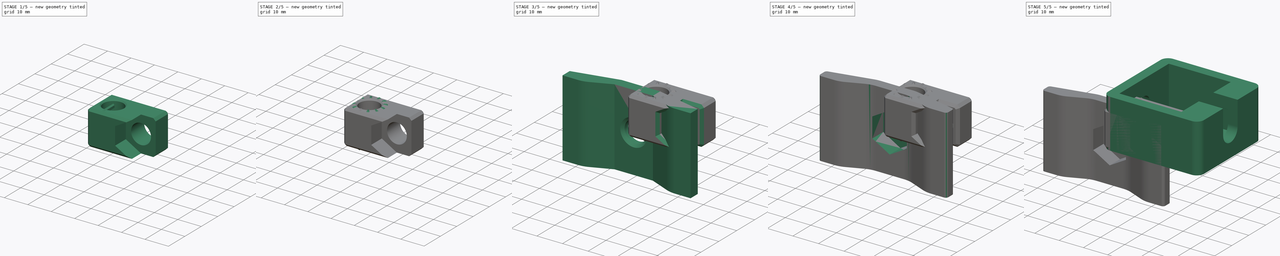
[diagram: build sequence overview — one tinted view per stage of 5, left to right]
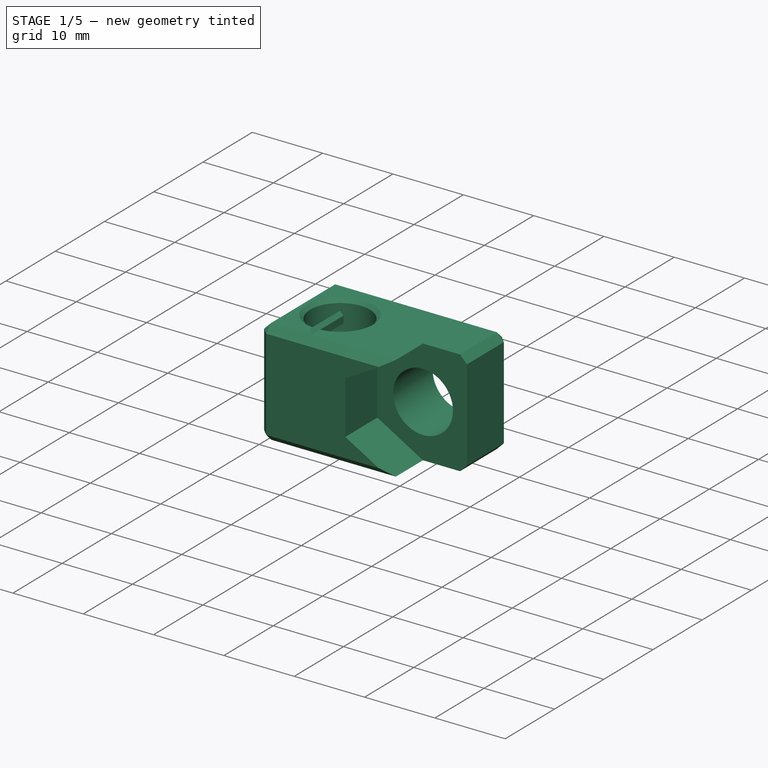
[diagram: stage 1 of 5 — iso view after this stage's code; geometry added in this stage tinted green]
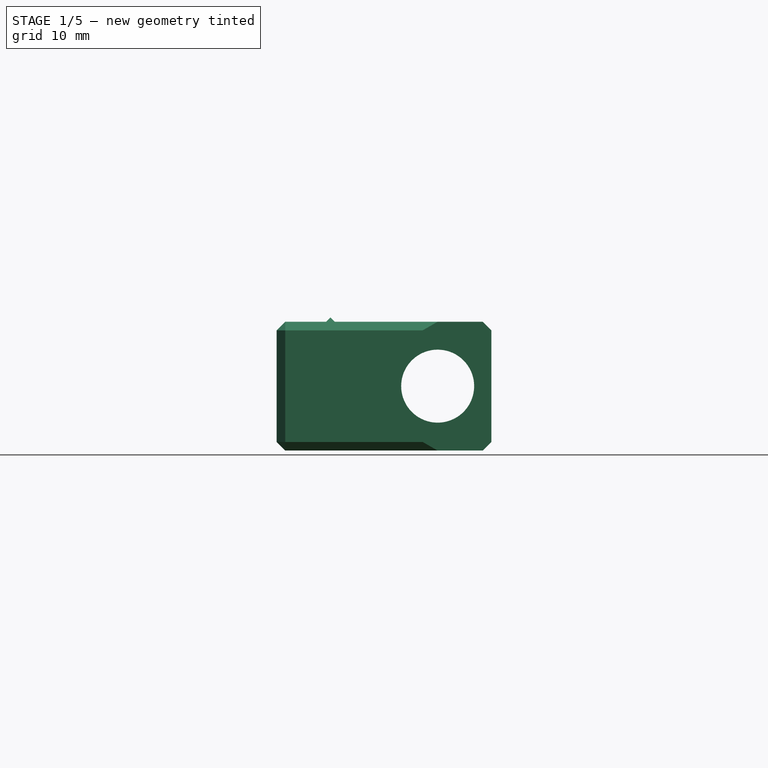
[diagram: stage 1 of 5 — front view after this stage's code; geometry added in this stage tinted green]
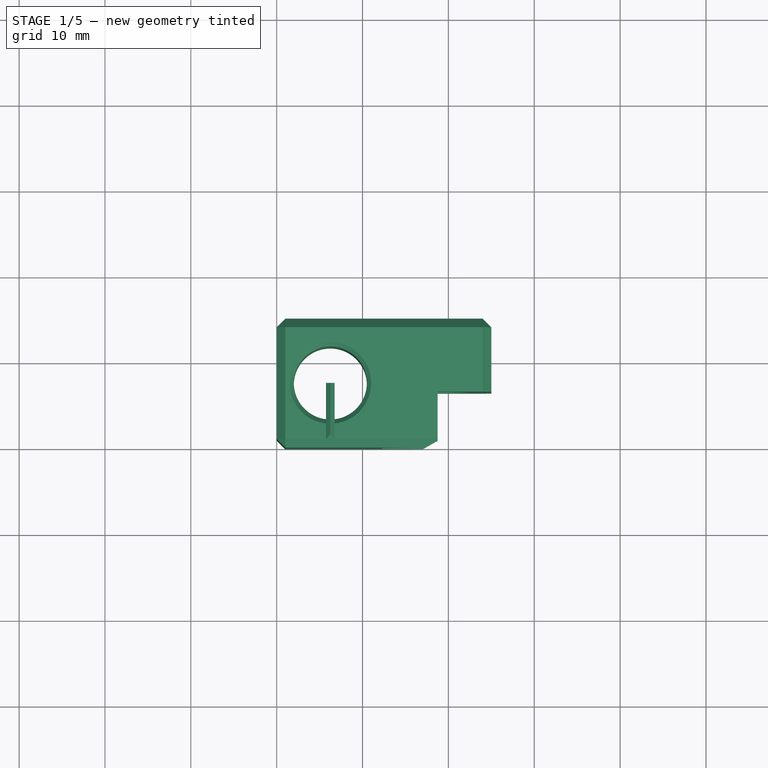
[diagram: stage 1 of 5 — top view after this stage's code; geometry added in this stage tinted green]
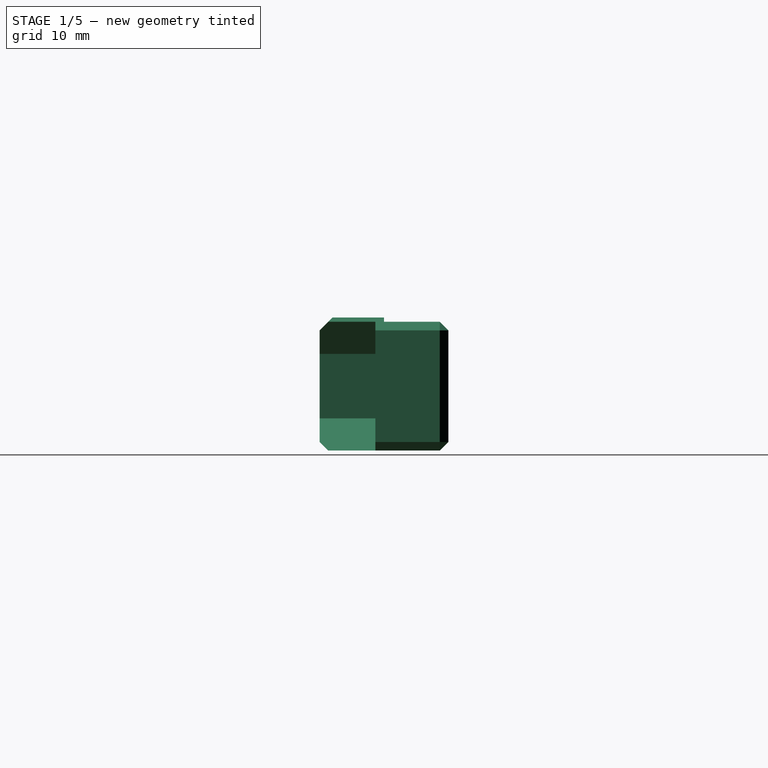
[diagram: stage 1 of 5 — right view after this stage's code; geometry added in this stage tinted green]
FCSTD DOCUMENT  (FreeCAD 0.20RUnknown)
Label: DrumStand01
License: All rights reserved
LicenseURL: http://en.wikipedia.org/wiki/All_rights_reserved
objects: Sketcher::SketchObject×18, PartDesign::Chamfer×7, PartDesign::Pocket×7, PartDesign::Pad×6, PartDesign::Hole×6, PartDesign::Fillet×4, PartDesign::Body×4, PartDesign::Plane×3, PartDesign::PolarPattern×2, PartDesign::FeatureBase×1
note: 88 computed .brp shape members not serialized (recipe doc carries the construction recipe); baked Part::Feature solids carry a one-line shape summary decoded from their .brp

FEATURE [PartDesign::Body] Body  label="DrumClampInner"
  Group = -> [Sketch,Pad,Sketch001,Hole,Chamfer,Fillet,Fillet001,Fillet002]
  Origin = -> Origin
  Tip = -> Fillet002
FEATURE [Sketcher::SketchObject] Sketch002  label="SketchConnector"
  FullyConstrained = true
  MapMode = 5
  Support = -> [XY_Plane001]
  sketch-geometry (11):
    g0: LineSegment StartX=0 StartY=-1.8e-15 StartZ=0 EndX=25 EndY=-1.8e-15 EndZ=0
    g1: LineSegment StartX=25 StartY=-1.8e-15 StartZ=0 EndX=25 EndY=15 EndZ=0
    g2: LineSegment StartX=25 StartY=15 StartZ=0 EndX=0 EndY=15 EndZ=0
    g3: LineSegment StartX=0 StartY=15 StartZ=0 EndX=0 EndY=-1.8e-15 EndZ=0
    g4: GeomPoint X=6.25 Y=7.5 Z=0
    g5: Circle CenterX=6.25 CenterY=7.5 CenterZ=0 NormalX=0 NormalY=0 NormalZ=1 AngleXU=0 Radius=2.5
    g6: LineSegment StartX=0 StartY=15 StartZ=0 EndX=25 EndY=-1.8e-15 EndZ=0
    g7: LineSegment StartX=25 StartY=15 StartZ=0 EndX=0 EndY=-1.8e-15 EndZ=0
    g8: GeomPoint X=12.5 Y=7.5 Z=0
    g9: LineSegment StartX=12.5 StartY=7.5 StartZ=0 EndX=6.25 EndY=7.5 EndZ=0
    g10: LineSegment StartX=6.25 StartY=7.5 StartZ=0 EndX=0 EndY=7.5 EndZ=0
  constraints (26):
    c: Coincident(g0,g1)
    c: Coincident(g1,g2)
    c: Coincident(g2,g3)
    c: Coincident(g3,g0)
    c: Horizontal(g0)
    c: Horizontal(g2)
    c: Vertical(g1)
    c: Vertical(g3)
    c: Coincident(g0,g-1)
    c: DistanceX(g0,g0) = 25  'width'
    c: Coincident(g5,g4)
    c: Diameter(g5) = 5
    c: DistanceY(g1,g1) = 15  'height'
    c: Coincident(g6,g2)
    c: Coincident(g6,g0)
    c: Coincident(g7,g1)
    c: Coincident(g7,g0)
    c: PointOnObject(g8,g6)
    c: PointOnObject(g8,g7)
    c: Coincident(g9,g8)
    c: Coincident(g9,g5)
    c: Coincident(g10,g5)
    c: PointOnObject(g10,g3)
    c: Equal(g10,g9)
    c: Horizontal(g10)
    c: Horizontal(g9)
FEATURE [PartDesign::Pad] Pad001
  Direction = (0,0,1)
  Length = 15
  Length2 = 10
  Profile = -> Sketch002
  ReferenceAxis = -> Sketch002 [N_Axis]
  Type = 0
FEATURE [PartDesign::Hole] Hole001
  BaseFeature = -> Pad001
  CustomThreadClearance = 0
  Depth = 61.8496
  DepthType = 1
  Diameter = 8.5
  DrillForDepth = false
  DrillPoint = 1
  DrillPointAngle = 118
  HoleCutCountersinkAngle = 90
  HoleCutCustomValues = false
  HoleCutDepth = 0
  HoleCutDiameter = 0
  HoleCutType = 0
  ModelThread = false
  Profile = -> Sketch002
  Reversed = true
  Tapered = false
  TaperedAngle = 90
  ThreadClass = 0
  ThreadDepth = 61.8496
  ThreadDepthType = 0
  ThreadDirection = 0
  ThreadFit = 0
  ThreadSize = 0
  ThreadType = 0
  Threaded = false
  UseCustomThreadClearance = false
FEATURE [Sketcher::SketchObject] Sketch003
  ExternalGeometry = -> [Hole001]
  FullyConstrained = true
  MapMode = 5
  Placement = pos=(0,0,0) rot=(1,0,0;1.5708rad)
  Support = -> [XZ_Plane001]
  sketch-geometry (10):
    g0: LineSegment StartX=0 StartY=0 StartZ=0 EndX=25 EndY=0 EndZ=0
    g1: LineSegment StartX=25 StartY=0 StartZ=0 EndX=25 EndY=15 EndZ=0
    g2: LineSegment StartX=25 StartY=15 StartZ=0 EndX=0 EndY=15 EndZ=0
    g3: LineSegment StartX=0 StartY=15 StartZ=0 EndX=0 EndY=0 EndZ=0
    g4: LineSegment StartX=0 StartY=15 StartZ=0 EndX=25 EndY=-1.8e-15 EndZ=0
    g5: LineSegment StartX=25 StartY=15 StartZ=0 EndX=0 EndY=-1.8e-15 EndZ=0
    g6: GeomPoint X=12.5 Y=7.5 Z=0
    g7: LineSegment StartX=12.5 StartY=7.5 StartZ=0 EndX=18.75 EndY=7.5 EndZ=0
    g8: LineSegment StartX=18.75 StartY=7.5 StartZ=0 EndX=25 EndY=7.5 EndZ=0
    g9: Circle CenterX=18.75 CenterY=7.5 CenterZ=0 NormalX=0 NormalY=0 NormalZ=1 AngleXU=0 Radius=2.5
  constraints (25):
    c: Coincident(g0,g1)
    c: Coincident(g1,g2)
    c: Coincident(g2,g3)
    c: Coincident(g3,g0)
    c: Horizontal(g0)
    c: Horizontal(g2)
    c: Vertical(g1)
    c: Vertical(g3)
    c: Coincident(g0,g-1)
    c: Coincident(g4,g2)
    c: Coincident(g4,g0)
    c: Coincident(g5,g0)
    c: Coincident(g1,g5)
    c: PointOnObject(g6,g4)
    c: PointOnObject(g6,g5)
    c: Coincident(g7,g6)
    c: Horizontal(g7)
    c: Coincident(g8,g7)
    c: Horizontal(g8)
    c: Equal(g8,g7)
    c: Coincident(g9,g7)
    c: Diameter(g9) = 5
    c: PointOnObject(g8,g1)
    c: PointOnObject(g-3,g1)
    c: PointOnObject(g-3,g2)
FEATURE [PartDesign::Hole] Hole002
  BaseFeature = -> Hole001
  CustomThreadClearance = 0
  Depth = 25
  DepthType = 0
  Diameter = 8.5
  DrillForDepth = false
  DrillPoint = 1
  DrillPointAngle = 118
  HoleCutCountersinkAngle = 90
  HoleCutCustomValues = false
  HoleCutDepth = 0
  HoleCutDiameter = 6.1
  HoleCutType = 0
  ModelThread = false
  Profile = -> Sketch003
  Tapered = false
  TaperedAngle = 90
  ThreadClass = 0
  ThreadDepth = 25
  ThreadDepthType = 0
  ThreadDirection = 0
  ThreadFit = 0
  ThreadSize = 0
  ThreadType = 0
  Threaded = false
  UseCustomThreadClearance = false
FEATURE [PartDesign::Chamfer] Chamfer001
  Angle = 45
  Base = -> Hole002 [Edge11,Edge5,Edge14,Edge17]
  BaseFeature = -> Hole002
  ChamferType = 0
  FlipDirection = false
  Size = 0.5
  Size2 = 1
  SupportTransform = false
  UseAllEdges = false
FEATURE [PartDesign::Chamfer] Chamfer002
  Angle = 45
  Base = -> Chamfer001 [Edge15,Edge4,Edge16,Edge10,Edge5,Edge17,Edge2,Edge8,Edge13,Edge12,Edge3,Edge9]
  BaseFeature = -> Chamfer001
  ChamferType = 0
  FlipDirection = false
  Size = 1
  Size2 = 1
  SupportTransform = false
  UseAllEdges = false
FEATURE [PartDesign::Body] Body003  label="DrumClampOuter"
  BaseFeature = -> Body
  Group = -> [Clone,Sketch009,Pad003,Sketch010,Hole005,Sketch011,Pocket002,Chamfer003]
  Origin = -> Origin003
  Tip = -> Chamfer003
FEATURE [Sketcher::SketchObject] Sketch012
  ExternalGeometry = -> [Hole002]
  FullyConstrained = true
  MapMode = 5
  Placement = pos=(0,-1.8e-15,0) rot=(1,0,0;1.5708rad)
  Support = -> [Hole002]
  sketch-geometry (10):
    g0: LineSegment StartX=25.25 StartY=3.74722 StartZ=0 EndX=25.25 EndY=11.2528 EndZ=0
    g1: LineSegment StartX=25.25 StartY=11.2528 StartZ=0 EndX=18.75 EndY=15.0056 EndZ=0
    g2: LineSegment StartX=18.75 StartY=15.0056 StartZ=0 EndX=12.25 EndY=11.2528 EndZ=0
    g3: LineSegment StartX=12.25 StartY=11.2528 StartZ=0 EndX=12.25 EndY=3.74722 EndZ=0
    g4: LineSegment StartX=12.25 StartY=3.74722 StartZ=0 EndX=18.75 EndY=-0.0055535 EndZ=0
    g5: LineSegment StartX=18.75 StartY=-0.0055535 StartZ=0 EndX=25.25 EndY=3.74722 EndZ=0
    g6: Circle CenterX=18.75 CenterY=7.5 CenterZ=0 NormalX=0 NormalY=0 NormalZ=1 AngleXU=0 Radius=7.50555
    g7: LineSegment StartX=18.75 StartY=15.0056 StartZ=0 EndX=30 EndY=21.5007 EndZ=0
    g8: LineSegment StartX=30 StartY=21.5007 StartZ=0 EndX=30 EndY=-6.50074 EndZ=0
    g9: LineSegment StartX=30 StartY=-6.50074 StartZ=0 EndX=18.75 EndY=-0.0055535 EndZ=0
  constraints (24):
    c: Coincident(g0,g1)
    c: Coincident(g1,g2)
    c: Coincident(g2,g3)
    c: Coincident(g3,g4)
    c: Coincident(g4,g5)
    c: Coincident(g5,g0)
    c: Equal(g0, g1-g5) x5
    c: PointOnObject(g0,g6)
    c: PointOnObject(g1,g6)
    c: PointOnObject(g2,g6)
    c: PointOnObject(g3,g6)
    c: PointOnObject(g4,g6)
    c: PointOnObject(g5,g6)
    c: Vertical(g3)
    c: Coincident(g-3,g6)
    c: Distance(g3,g0) = 13
    c: Coincident(g1,g7)
    c: Coincident(g7,g8)
    c: Vertical(g8)
    c: Coincident(g8,g9)
    c: Coincident(g9,g4)
    c: DistanceX(g-4,g7) = 5
    c: Parallel(g2,g7)
    c: Parallel(g4,g9)
FEATURE [PartDesign::Pocket] Pocket003
  BaseFeature = -> Chamfer002
  Direction = (0,1,-2e-16)
  Length = 6.5
  Length2 = 5
  Profile = -> Sketch012
  ReferenceAxis = -> Sketch012 [N_Axis]
  Type = 0
FEATURE [PartDesign::Plane] DatumPlane
  AttachmentOffset = pos=(0,0,-7.5) rot=(0,0,1;0rad)
  Length = 60
  MapMode = 5
  Placement = pos=(0,7.5,1.7e-15) rot=(1,0,0;1.5708rad)
  ResizeMode = 0
  Support = -> [XZ_Plane001]
  Width = 60
  expr: .AttachmentOffset.Base.z = -<<SketchConnector>>.Constraints.height / 2
FEATURE [Sketcher::SketchObject] Sketch013
  ExternalGeometry = -> [Pocket003]
  FullyConstrained = true
  MapMode = 5
  Placement = pos=(0,7.5,1.7e-15) rot=(1,0,0;1.5708rad)
  Support = -> [DatumPlane]
  sketch-geometry (10):
    g0: LineSegment StartX=11 StartY=15 StartZ=0 EndX=6.25 EndY=15 EndZ=0
    g1: LineSegment StartX=6.25 StartY=15 StartZ=0 EndX=1.5 EndY=15 EndZ=0
    g2: LineSegment StartX=6.25 StartY=15 StartZ=0 EndX=6.25 EndY=15.5 EndZ=0
    g3: LineSegment StartX=6.25 StartY=15.5 StartZ=0 EndX=5.75 EndY=15 EndZ=0
    g4: LineSegment StartX=5.75 StartY=15 StartZ=0 EndX=6.25 EndY=15 EndZ=0
    g5: LineSegment StartX=6.25 StartY=15 StartZ=0 EndX=6.75 EndY=15 EndZ=0
    g6: LineSegment StartX=6.75 StartY=15 StartZ=0 EndX=6.25 EndY=15.5 EndZ=0
    g7: LineSegment StartX=5.75 StartY=15 StartZ=0 EndX=5.75 EndY=14 EndZ=0
    g8: LineSegment StartX=5.75 StartY=14 StartZ=0 EndX=6.75 EndY=14 EndZ=0
    g9: LineSegment StartX=6.75 StartY=14 StartZ=0 EndX=6.75 EndY=15 EndZ=0
  constraints (26):
    c: Coincident(g-3,g0)
    c: Coincident(g0,g1)
    c: Coincident(g1,g-3)
    c: Coincident(g0,g2)
    c: Vertical(g2)
    c: Coincident(g2,g3)
    c: Coincident(g3,g4)
    c: Coincident(g4,g0)
    c: Coincident(g4,g5)
    c: Coincident(g5,g6)
    c: Coincident(g6,g3)
    c: Equal(g1,g0)
    c: Equal(g5,g4)
    c: Perpendicular(g6,g3)
    c: Horizontal(g1)
    c: Horizontal(g4)
    c: Horizontal(g5)
    c: DistanceY(g2,g2) = 0.5
    c: Coincident(g3,g7)
    c: Vertical(g7)
    c: Coincident(g7,g8)
    c: Horizontal(g8)
    c: Coincident(g8,g9)
    c: Coincident(g9,g5)
    c: Vertical(g9)
    c: DistanceY(g9,g9) = 1
FEATURE [PartDesign::Pad] Pad004
  BaseFeature = -> Pocket003
  Direction = (0,-1,-2e-16)
  Length = 10
  Length2 = 10
  Profile = -> Sketch013
  ReferenceAxis = -> Sketch013 [N_Axis]
  Type = 3
  UpToFace = -> Pocket003 [Face7]
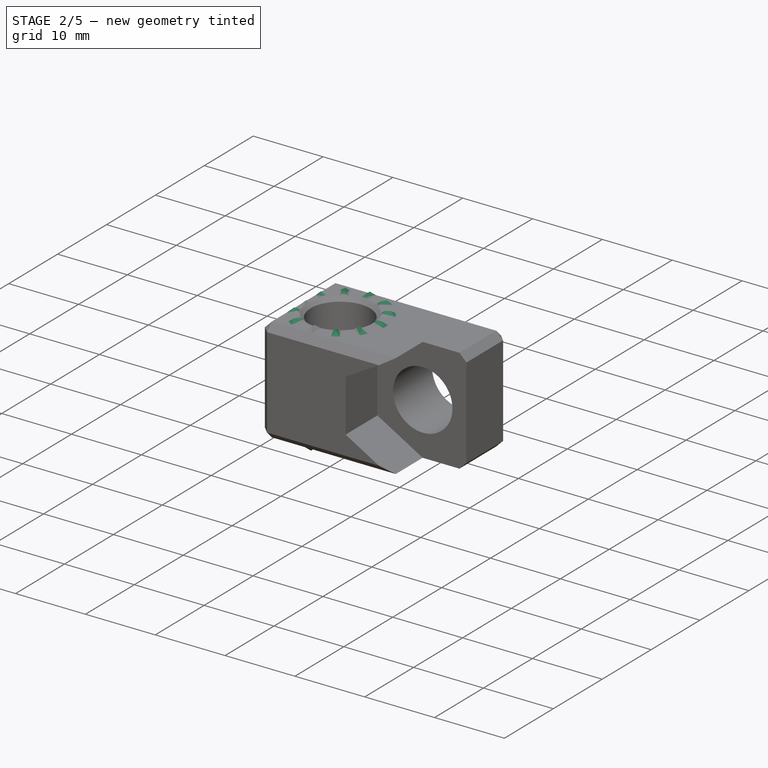
[diagram: stage 2 of 5 — iso view after this stage's code; geometry added in this stage tinted green]
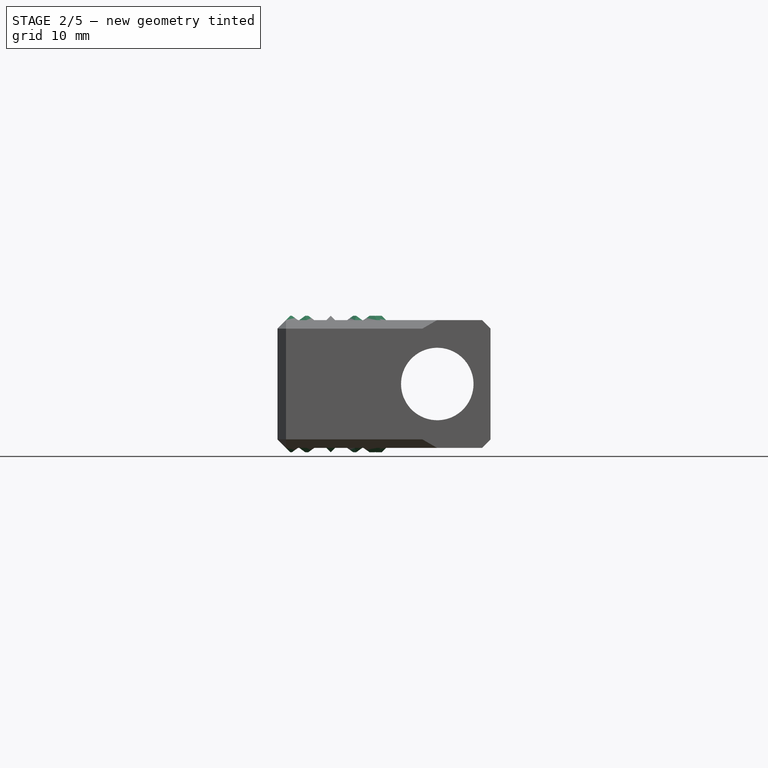
[diagram: stage 2 of 5 — front view after this stage's code; geometry added in this stage tinted green]
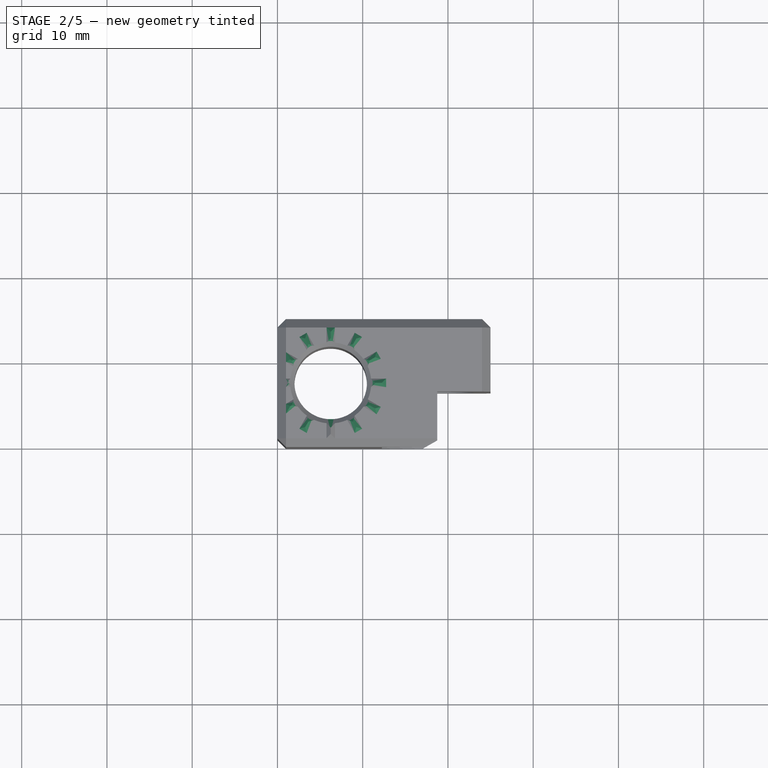
[diagram: stage 2 of 5 — top view after this stage's code; geometry added in this stage tinted green]
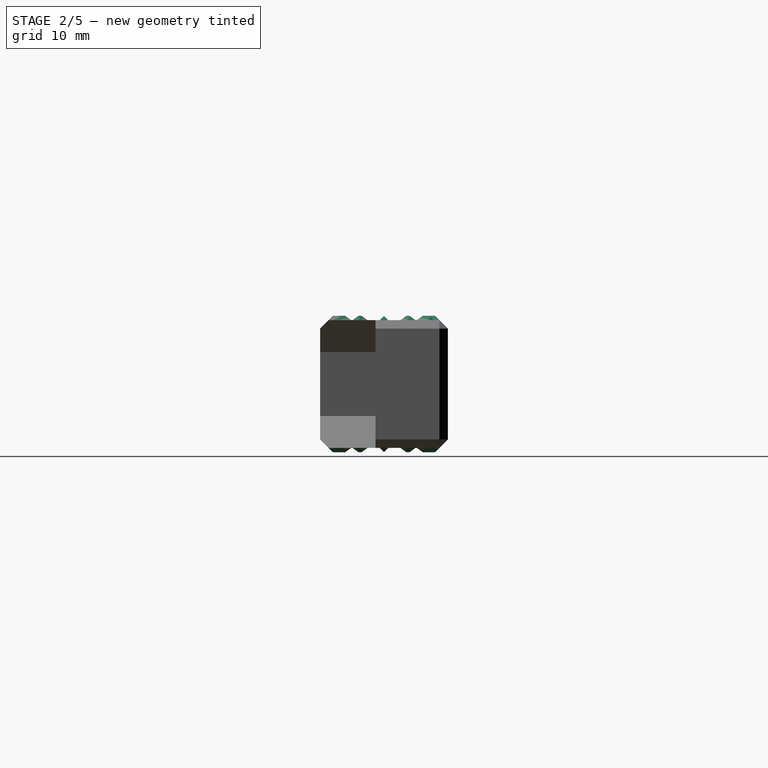
[diagram: stage 2 of 5 — right view after this stage's code; geometry added in this stage tinted green]
FEATURE [PartDesign::PolarPattern] PolarPattern
  Angle = 360
  Axis = -> Sketch013 [Axis2]
  BaseFeature = -> Pad004
  Occurrences = 12
  Originals = -> [Pad004]
FEATURE [Sketcher::SketchObject] Sketch014
  ExternalGeometry = -> [PolarPattern]
  FullyConstrained = true
  MapMode = 5
  Placement = pos=(0,7.5,1.7e-15) rot=(1,0,0;1.5708rad)
  Support = -> [DatumPlane]
  sketch-geometry (8):
    g0: LineSegment StartX=1.5 StartY=-1.7e-15 StartZ=0 EndX=6.25 EndY=-1.7e-15 EndZ=0
    g1: LineSegment StartX=6.25 StartY=-1.7e-15 StartZ=0 EndX=11 EndY=-1.7e-15 EndZ=0
    g2: LineSegment StartX=6.25 StartY=-0.5 StartZ=0 EndX=5.75 EndY=-1.7e-15 EndZ=0
    g3: LineSegment StartX=5.75 StartY=-1.7e-15 StartZ=0 EndX=5.75 EndY=1 EndZ=0
    g4: LineSegment StartX=5.75 StartY=1 StartZ=0 EndX=6.75 EndY=1 EndZ=0
    g5: LineSegment StartX=6.75 StartY=1 StartZ=0 EndX=6.75 EndY=-1.7e-15 EndZ=0
    g6: LineSegment StartX=6.75 StartY=-1.7e-15 StartZ=0 EndX=6.25 EndY=-0.5 EndZ=0
    g7: LineSegment StartX=6.25 StartY=-1.7e-15 StartZ=0 EndX=6.25 EndY=-0.5 EndZ=0
  constraints (22):
    c: Coincident(g0,g1)
    c: Coincident(g1,g-3)
    c: Equal(g0,g1)
    c: Horizontal(g1)
    c: PointOnObject(g2,g0)
    c: Coincident(g2,g3)
    c: Coincident(g3,g4)
    c: Horizontal(g4)
    c: Coincident(g4,g5)
    c: PointOnObject(g5,g1)
    c: Vertical(g5)
    c: Coincident(g5,g6)
    c: Coincident(g6,g2)
    c: Coincident(g7,g0)
    c: Coincident(g7,g2)
    c: Vertical(g7)
    c: Perpendicular(g6,g2)
    c: Vertical(g3)
    c: Equal(g6,g2)
    c: DistanceY(g7,g7) = 0.5
    c: DistanceY(g5,g5) = 1
    c: Coincident(g0,g-3)
FEATURE [PartDesign::Pad] Pad005
  BaseFeature = -> PolarPattern
  Direction = (0,-1,-2e-16)
  Length = 10
  Length2 = 10
  Profile = -> Sketch014
  ReferenceAxis = -> Sketch014 [N_Axis]
  Type = 3
  UpToFace = -> PolarPattern [Face3]
FEATURE [PartDesign::PolarPattern] PolarPattern001
  Angle = 360
  Axis = -> Sketch014 [Axis2]
  BaseFeature = -> Pad005
  Occurrences = 12
  Originals = -> [Pad005]
FEATURE [Sketcher::SketchObject] Sketch015
  ExternalGeometry = -> [PolarPattern001]
  FullyConstrained = true
  MapMode = 5
  Placement = pos=(0,15,0) rot=(0,0.707107,0.707107;3.14159rad)
  Support = -> [PolarPattern001]
  sketch-geometry (6):
    g0: LineSegment StartX=4e-16 StartY=14 StartZ=0 EndX=0 EndY=1 EndZ=0
    g1: LineSegment StartX=0 StartY=1 StartZ=0 EndX=-3 EndY=-2 EndZ=0
    g2: LineSegment StartX=-3 StartY=-2 StartZ=0 EndX=3 EndY=-2 EndZ=0
    g3: LineSegment StartX=3 StartY=-2 StartZ=0 EndX=3 EndY=17 EndZ=0
    g4: LineSegment StartX=3 StartY=17 StartZ=0 EndX=-3 EndY=17 EndZ=0
    g5: LineSegment StartX=-3 StartY=17 StartZ=0 EndX=4e-16 EndY=14 EndZ=0
  constraints (16):
    c: Coincident(g-3,g0)
    c: Coincident(g0,g-4)
    c: Coincident(g0,g1)
    c: Coincident(g1,g2)
    c: Horizontal(g2)
    c: Coincident(g2,g3)
    c: Vertical(g3)
    c: Coincident(g3,g4)
    c: Horizontal(g4)
    c: Coincident(g4,g5)
    c: Coincident(g5,g0)
    c: PointOnObject(g-3,g5)
    c: PointOnObject(g-4,g1)
    c: Equal(g5,g1)
    c: DistanceX(g0,g3) = 3
    c: DistanceY(g0,g4) = 3
FEATURE [PartDesign::Pocket] Pocket004
  BaseFeature = -> PolarPattern001
  Direction = (0,-1,2e-16)
  Length = 5
  Length2 = 5
  Profile = -> Sketch015
  ReferenceAxis = -> Sketch015 [N_Axis]
  Type = 1
FEATURE [PartDesign::Plane] DatumPlane001
  Length = 60
  MapMode = 11
  Placement = pos=(6.25,7.5,0.5) rot=(0.707107,0.707107,0;3.14159rad)
  ResizeMode = 0
  Support = -> [Pocket003]
  Width = 60
FEATURE [Sketcher::SketchObject] Sketch016
  ExternalGeometry = -> [Pocket003]
  FullyConstrained = true
  MapMode = 5
  Placement = pos=(6.25,7.5,0.5) rot=(0.707107,0.707107,0;3.14159rad)
  Support = -> [DatumPlane001]
  sketch-geometry (2):
    g0: Circle CenterX=0 CenterY=0 CenterZ=0 NormalX=0 NormalY=0 NormalZ=1 AngleXU=0 Radius=4.25
    g1: LineSegment StartX=0 StartY=0 StartZ=0 EndX=4.25 EndY=0 EndZ=0
  constraints (5):
    c: Coincident(g0,g-3)
    c: Coincident(g1,g0)
    c: PointOnObject(g1,g-3)
    c: Horizontal(g1)
    c: PointOnObject(g1,g0)
FEATURE [PartDesign::Pocket] Pocket005
  BaseFeature = -> Pocket004
  Direction = (0,0,1)
  Length = 1
  Length2 = 1
  Profile = -> Sketch016
  ReferenceAxis = -> Sketch016 [N_Axis]
  Reversed = true
  TaperAngle = 45
  Type = 4
FEATURE [PartDesign::Plane] DatumPlane002
  Length = 60
  MapMode = 11
  Placement = pos=(6.25,7.5,14.5) rot=(0,0,-1;1.5708rad)
  ResizeMode = 0
  Support = -> [Pocket003]
  Width = 60
FEATURE [Sketcher::SketchObject] Sketch017
  ExternalGeometry = -> [Pocket003]
  FullyConstrained = true
  MapMode = 5
  Placement = pos=(6.25,7.5,14.5) rot=(0,0,-1;1.5708rad)
  Support = -> [DatumPlane002]
  sketch-geometry (2):
    g0: Circle CenterX=0 CenterY=0 CenterZ=0 NormalX=0 NormalY=0 NormalZ=1 AngleXU=0 Radius=4.25
    g1: LineSegment StartX=0 StartY=0 StartZ=0 EndX=4.25 EndY=0 EndZ=0
  constraints (5):
    c: Coincident(g0,g-3)
    c: Coincident(g1,g0)
    c: PointOnObject(g1,g-3)
    c: Horizontal(g1)
    c: PointOnObject(g1,g0)
FEATURE [PartDesign::Pocket] Pocket006
  BaseFeature = -> Pocket005
  Direction = (0,0,-1)
  Length = 2
  Length2 = 1
  Profile = -> Sketch017
  ReferenceAxis = -> Sketch017 [N_Axis]
  Reversed = true
  TaperAngle = 45
  Type = 4
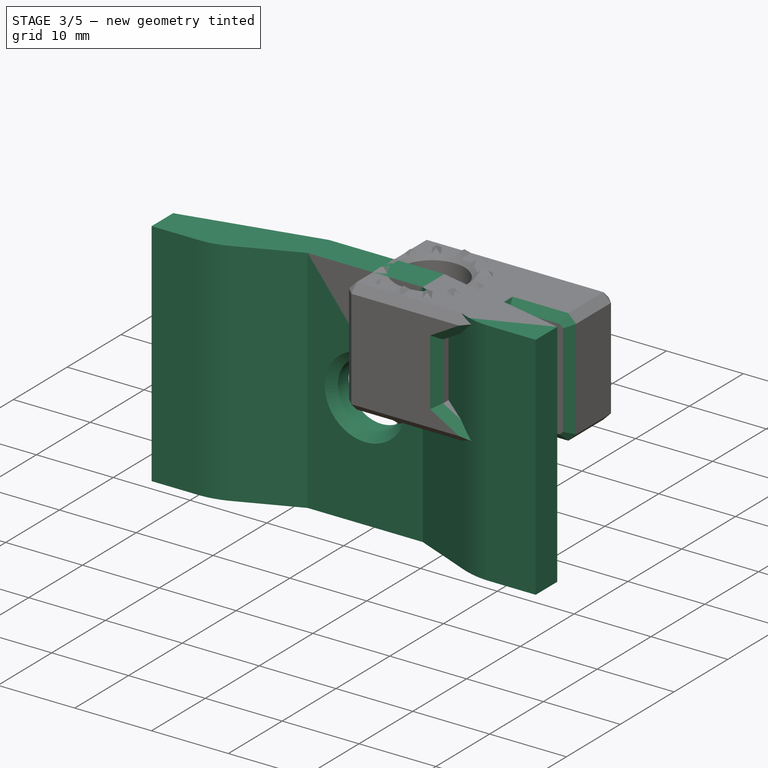
[diagram: stage 3 of 5 — iso view after this stage's code; geometry added in this stage tinted green]
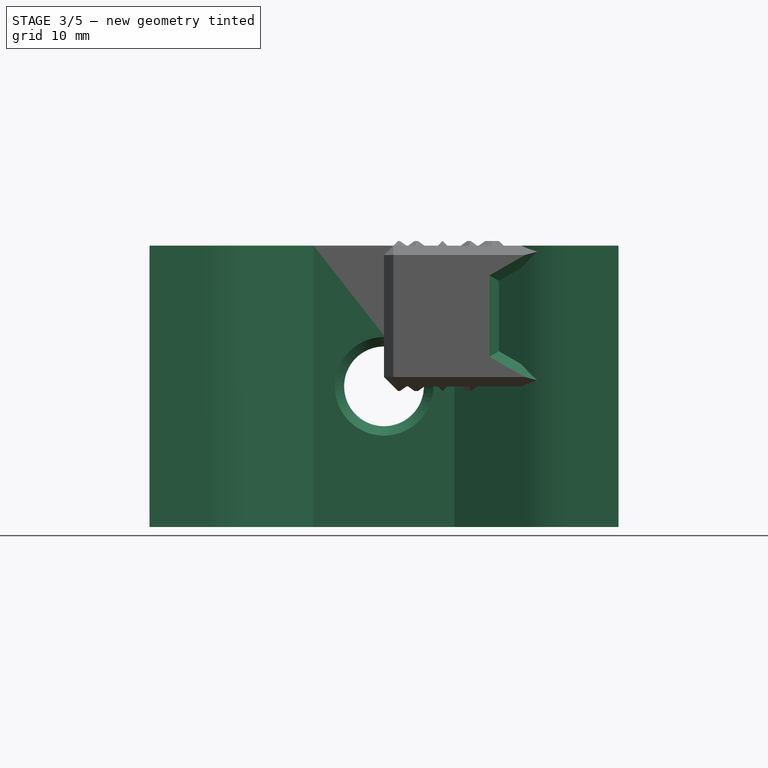
[diagram: stage 3 of 5 — front view after this stage's code; geometry added in this stage tinted green]
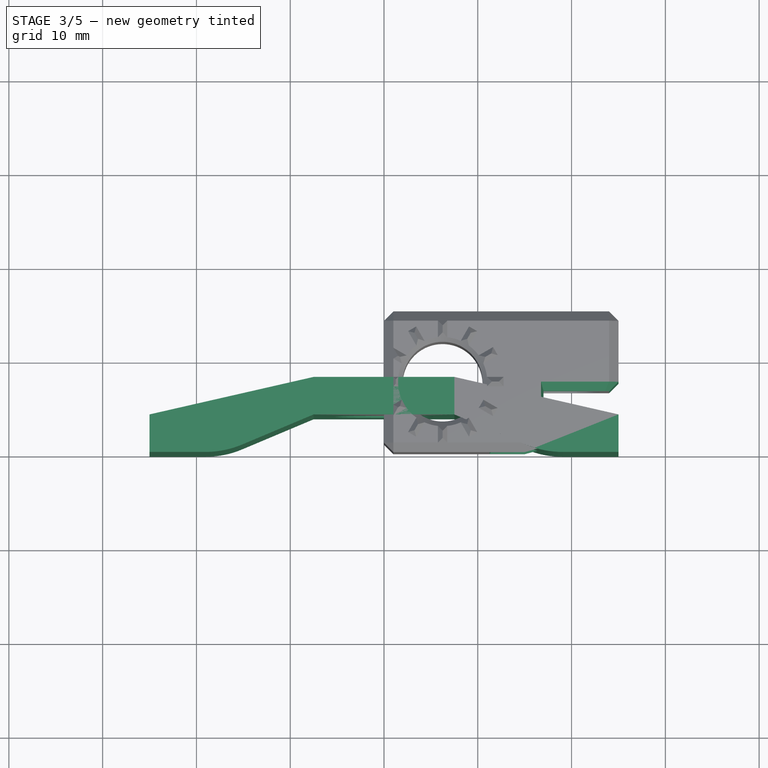
[diagram: stage 3 of 5 — top view after this stage's code; geometry added in this stage tinted green]
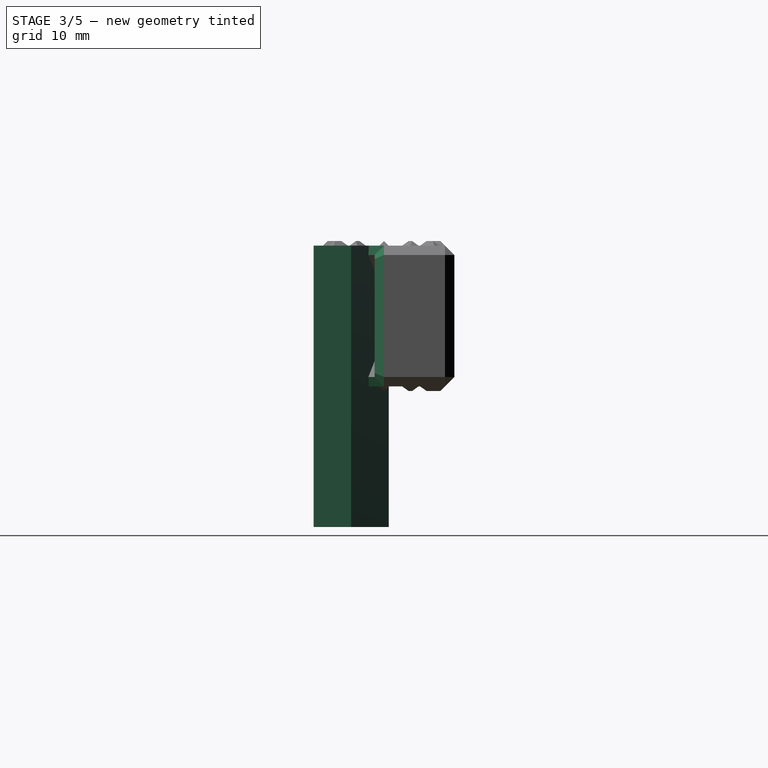
[diagram: stage 3 of 5 — right view after this stage's code; geometry added in this stage tinted green]
FEATURE [Sketcher::SketchObject] Sketch
  FullyConstrained = true
  MapMode = 5
  Support = -> [XY_Plane]
  sketch-geometry (13):
    g0: LineSegment StartX=-25 StartY=0 StartZ=0 EndX=-17 EndY=0 EndZ=0
    g1: LineSegment StartX=-17 StartY=0 StartZ=0 EndX=-7.5 EndY=4 EndZ=0
    g2: LineSegment StartX=-7.5 StartY=4 StartZ=0 EndX=7.5 EndY=4 EndZ=0
    g3: LineSegment StartX=7.5 StartY=4 StartZ=0 EndX=17 EndY=0 EndZ=0
    g4: LineSegment StartX=17 StartY=0 StartZ=0 EndX=25 EndY=0 EndZ=0
    g5: LineSegment StartX=-25 StartY=0 StartZ=0 EndX=-25 EndY=4 EndZ=0
    g6: LineSegment StartX=-25 StartY=4 StartZ=0 EndX=-7.5 EndY=8 EndZ=0
    g7: LineSegment StartX=-7.5 StartY=8 StartZ=0 EndX=7.5 EndY=8 EndZ=0
    g8: LineSegment StartX=7.5 StartY=8 StartZ=0 EndX=25 EndY=4 EndZ=0
    g9: LineSegment StartX=25 StartY=4 StartZ=0 EndX=25 EndY=0 EndZ=0
    g10: LineSegment StartX=7.5 StartY=8 StartZ=0 EndX=7.5 EndY=4 EndZ=0
    g11: LineSegment StartX=-17 StartY=0 StartZ=0 EndX=0 EndY=0 EndZ=0
    g12: LineSegment StartX=0 StartY=0 StartZ=0 EndX=17 EndY=0 EndZ=0
  constraints (36):
    c: Coincident(g0,g1)
    c: Coincident(g1,g2)
    c: Horizontal(g2)
    c: Coincident(g2,g3)
    c: Coincident(g3,g4)
    c: PointOnObject(g4,g-1)
    c: Horizontal(g4)
    c: Horizontal(g0)
    c: Equal(g0,g4)
    c: Equal(g1,g3)
    c: DistanceX(g0,g4) = 50
    c: DistanceX(g2,g2) = 15
    c: DistanceY(g3,g2) = 4
    c: Coincident(g0,g5)
    c: Coincident(g5,g6)
    c: Coincident(g6,g7)
    c: Horizontal(g7)
    c: Coincident(g7,g8)
    c: Coincident(g8,g9)
    c: Coincident(g9,g4)
    c: Vertical(g5)
    c: Vertical(g9)
    c: Equal(g6,g8)
    c: Equal(g5,g9)
    c: Coincident(g10,g7)
    c: Coincident(g10,g2)
    c: Vertical(g10)
    c: Equal(g10,g9)
    c: DistanceY(g9,g9) = 4
    c: DistanceX(g4,g4) = 8
    c: Coincident(g11,g0)
    c: Coincident(g11,g-1)
    c: Horizontal(g11)
    c: Coincident(g12,g11)
    c: Coincident(g12,g3)
    c: Equal(g12,g11)
FEATURE [PartDesign::Pad] Pad
  Direction = (0,0,1)
  Length = 30
  Length2 = 10
  Midplane = true
  Profile = -> Sketch
  ReferenceAxis = -> Sketch [N_Axis]
  Type = 0
FEATURE [Sketcher::SketchObject] Sketch001
  FullyConstrained = true
  MapMode = 5
  Placement = pos=(0,0,0) rot=(1,0,0;1.5708rad)
  Support = -> [XZ_Plane]
  sketch-geometry (1):
    g0: Circle CenterX=0 CenterY=0 CenterZ=0 NormalX=0 NormalY=0 NormalZ=1 AngleXU=0 Radius=4.25
  constraints (2):
    c: Coincident(g0,g-1)
    c: Diameter(g0) = 8.5
FEATURE [PartDesign::Hole] Hole
  BaseFeature = -> Pad
  CustomThreadClearance = 0
  Depth = 25
  DepthType = 0
  Diameter = 8.5
  DrillForDepth = false
  DrillPoint = 1
  DrillPointAngle = 118
  HoleCutCountersinkAngle = 90
  HoleCutCustomValues = false
  HoleCutDepth = 0
  HoleCutDiameter = 6.1
  HoleCutType = 0
  ModelThread = false
  Profile = -> Sketch001
  Tapered = false
  TaperedAngle = 90
  ThreadClass = 0
  ThreadDepth = 25
  ThreadDepthType = 0
  ThreadDirection = 0
  ThreadFit = 0
  ThreadSize = 0
  ThreadType = 0
  Threaded = false
  UseCustomThreadClearance = false
FEATURE [PartDesign::Chamfer] Chamfer
  Angle = 45
  Base = -> Hole [Edge27,Edge32]
  BaseFeature = -> Hole
  ChamferType = 0
  FlipDirection = false
  Size = 1
  Size2 = 1
  SupportTransform = false
  UseAllEdges = false
FEATURE [PartDesign::Fillet] Fillet
  Base = -> Chamfer [Edge8,Edge27]
  BaseFeature = -> Chamfer
  Radius = 10
  SupportTransform = false
  UseAllEdges = false
FEATURE [PartDesign::Chamfer] Chamfer004
  Angle = 45
  Base = -> Pocket006 [Edge62,Edge88,Edge89,Edge90,Edge91]
  BaseFeature = -> Pocket006
  ChamferType = 0
  FlipDirection = false
  Size = 1
  Size2 = 1
  SupportTransform = false
  UseAllEdges = false
FEATURE [PartDesign::Chamfer] Chamfer005
  Angle = 45
  Base = -> Chamfer004 [Edge5,Edge19,Edge50]
  BaseFeature = -> Chamfer004
  ChamferType = 0
  FlipDirection = false
  Size = 1
  Size2 = 1
  SupportTransform = false
  UseAllEdges = false
FEATURE [PartDesign::Chamfer] Chamfer006
  Angle = 46
  Base = -> Chamfer005 [Edge6,Edge4,Edge49,Edge51]
  BaseFeature = -> Chamfer005
  ChamferType = 0
  FlipDirection = false
  Size = 2
  Size2 = 0.5
  SupportTransform = false
  UseAllEdges = false
FEATURE [PartDesign::Body] Body001  label="RightAngleConnector8mm"
  Group = -> [Sketch002,Pad001,Hole001,Sketch003,Hole002,Chamfer001,Chamfer002,Sketch012,Pocket003,DatumPlane,Sketch013,Pad004,PolarPattern,Sketch014,Pad005,PolarPattern001,Sketch015,Pocket004,DatumPlane001,Sketch016,Pocket005,DatumPlane002,Sketch017,Pocket006,Chamfer004,Chamfer005,Chamfer006]
  Origin = -> Origin001
  Tip = -> Chamfer006
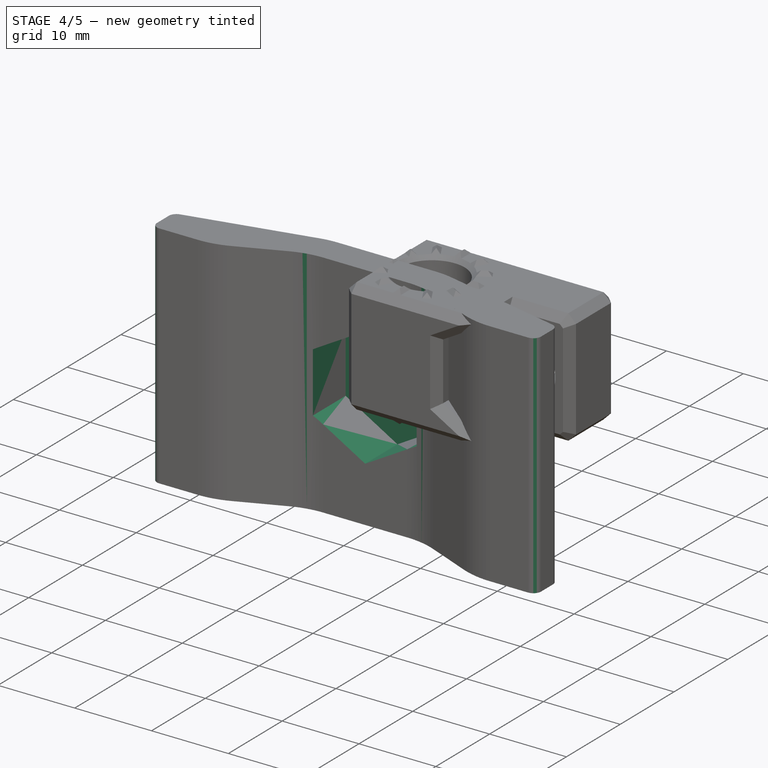
[diagram: stage 4 of 5 — iso view after this stage's code; geometry added in this stage tinted green]
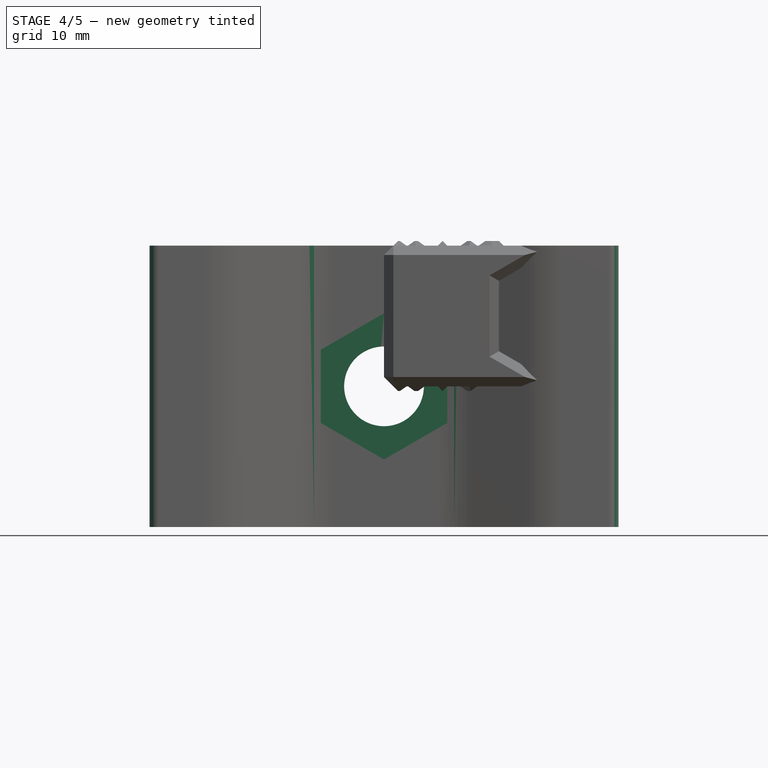
[diagram: stage 4 of 5 — front view after this stage's code; geometry added in this stage tinted green]
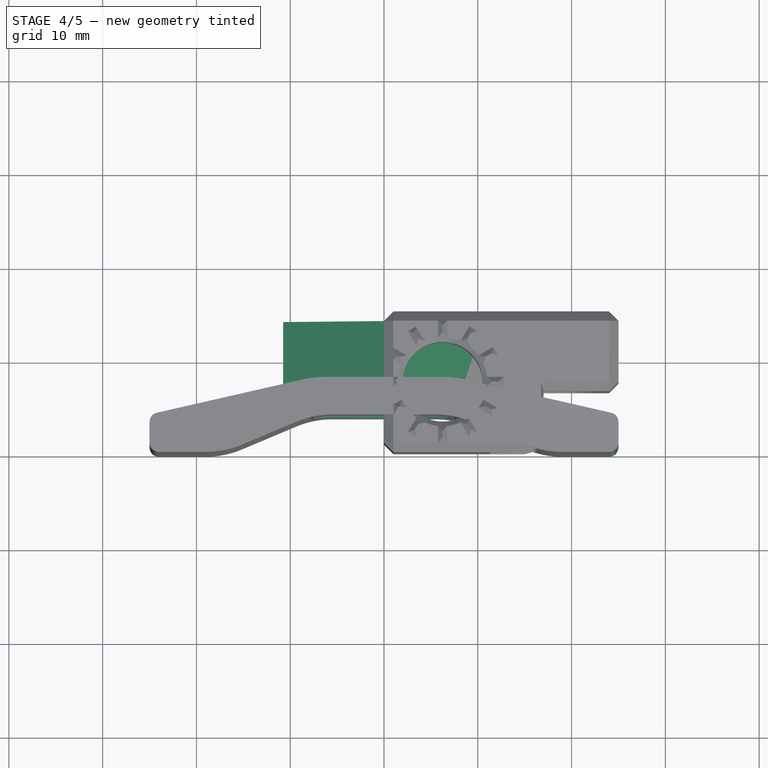
[diagram: stage 4 of 5 — top view after this stage's code; geometry added in this stage tinted green]
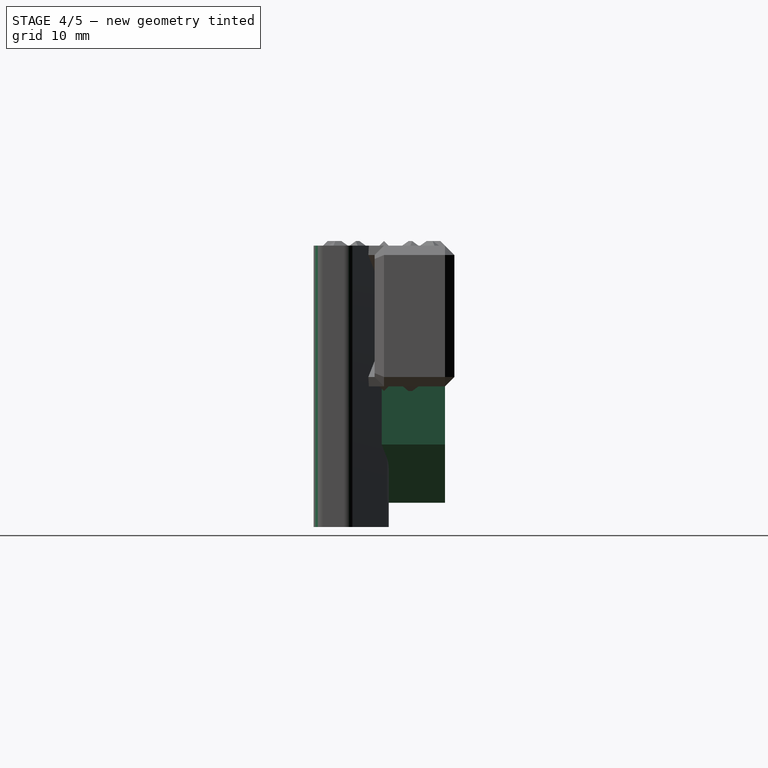
[diagram: stage 4 of 5 — right view after this stage's code; geometry added in this stage tinted green]
FEATURE [PartDesign::Fillet] Fillet001
  Base = -> Fillet [Edge38,Edge36,Edge30,Edge31]
  BaseFeature = -> Fillet
  Radius = 1
  SupportTransform = false
  UseAllEdges = false
FEATURE [PartDesign::Fillet] Fillet002
  Base = -> Fillet001 [Edge26,Edge32,Edge39,Edge33]
  BaseFeature = -> Fillet001
  Radius = 10
  SupportTransform = false
  UseAllEdges = false
FEATURE [PartDesign::Body] Body002  label="CameraMountM8Adapter"
  Group = -> [Sketch004,Pad002,Sketch005,Hole003,Sketch006,Hole004,Sketch007,Pocket,Sketch008,Pocket001,Fillet003]
  Origin = -> Origin002
  Tip = -> Fillet003
FEATURE [PartDesign::FeatureBase] Clone
  BaseFeature = -> Body
FEATURE [Sketcher::SketchObject] Sketch009
  FullyConstrained = true
  MapMode = 5
  Placement = pos=(0,4,0) rot=(1,0,0;1.5708rad)
  Support = -> [Clone]
  expr: Constraints[19] = 13.5 + 2 * 4
  sketch-geometry (7):
    g0: LineSegment StartX=10.75 StartY=-6.20652 StartZ=0 EndX=10.75 EndY=6.20652 EndZ=0
    g1: LineSegment StartX=10.75 StartY=6.20652 StartZ=0 EndX=0 EndY=12.413 EndZ=0
    g2: LineSegment StartX=0 StartY=12.413 StartZ=0 EndX=-10.75 EndY=6.20652 EndZ=0
    g3: LineSegment StartX=-10.75 StartY=6.20652 StartZ=0 EndX=-10.75 EndY=-6.20652 EndZ=0
    g4: LineSegment StartX=-10.75 StartY=-6.20652 StartZ=0 EndX=0 EndY=-12.413 EndZ=0
    g5: LineSegment StartX=0 StartY=-12.413 StartZ=0 EndX=10.75 EndY=-6.20652 EndZ=0
    g6: Circle CenterX=0 CenterY=0 CenterZ=0 NormalX=0 NormalY=0 NormalZ=1 AngleXU=0 Radius=12.413
  constraints (16):
    c: Coincident(g0,g1)
    c: Coincident(g1,g2)
    c: Coincident(g2,g3)
    c: Coincident(g3,g4)
    c: Coincident(g4,g5)
    c: Coincident(g5,g0)
    c: Equal(g0, g1-g5) x5
    c: PointOnObject(g0,g6)
    c: PointOnObject(g1,g6)
    c: PointOnObject(g2,g6)
    c: PointOnObject(g3,g6)
    c: PointOnObject(g4,g6)
    c: PointOnObject(g5,g6)
    c: Coincident(g6,g-1)
    c: Vertical(g3)
    c: DistanceX(g3,g0) = 21.5
FEATURE [PartDesign::Pad] Pad003
  BaseFeature = -> Clone
  Direction = (0,-1,2e-16)
  Length = 10
  Length2 = 10
  Profile = -> Sketch009
  ReferenceAxis = -> Sketch009 [N_Axis]
  Reversed = true
  Type = 0
  expr: Length = 10mm
FEATURE [Sketcher::SketchObject] Sketch010
  FullyConstrained = true
  MapMode = 5
  Placement = pos=(0,4,-9e-16) rot=(1,0,0;1.5708rad)
  Support = -> [Pad003]
  sketch-geometry (1):
    g0: Circle CenterX=0 CenterY=0 CenterZ=0 NormalX=0 NormalY=0 NormalZ=1 AngleXU=0 Radius=2.5
  constraints (2):
    c: Diameter(g0) = 5
    c: Coincident(g0,g-1)
FEATURE [PartDesign::Hole] Hole005
  BaseFeature = -> Pad003
  CustomThreadClearance = 0
  Depth = 25
  DepthType = 0
  Diameter = 8.5
  DrillForDepth = false
  DrillPoint = 1
  DrillPointAngle = 118
  HoleCutCountersinkAngle = 90
  HoleCutCustomValues = false
  HoleCutDepth = 0
  HoleCutDiameter = 6.1
  HoleCutType = 0
  ModelThread = false
  Profile = -> Sketch010
  Tapered = false
  TaperedAngle = 90
  ThreadClass = 0
  ThreadDepth = 25
  ThreadDepthType = 0
  ThreadDirection = 0
  ThreadFit = 0
  ThreadSize = 0
  ThreadType = 0
  Threaded = false
  UseCustomThreadClearance = false
FEATURE [Sketcher::SketchObject] Sketch011
  FullyConstrained = true
  MapMode = 5
  Placement = pos=(0,4,0) rot=(1,0,0;1.5708rad)
  Support = -> [Hole005]
  sketch-geometry (7):
    g0: LineSegment StartX=6.75 StartY=-3.89711 StartZ=0 EndX=6.75 EndY=3.89711 EndZ=0
    g1: LineSegment StartX=6.75 StartY=3.89711 StartZ=0 EndX=4.4e-15 EndY=7.79423 EndZ=0
    g2: LineSegment StartX=4.4e-15 StartY=7.79423 StartZ=0 EndX=-6.75 EndY=3.89711 EndZ=0
    g3: LineSegment StartX=-6.75 StartY=3.89711 StartZ=0 EndX=-6.75 EndY=-3.89711 EndZ=0
    g4: LineSegment StartX=-6.75 StartY=-3.89711 StartZ=0 EndX=4.4e-15 EndY=-7.79423 EndZ=0
    g5: LineSegment StartX=4.7e-15 StartY=-7.79423 StartZ=0 EndX=6.75 EndY=-3.89711 EndZ=0
    g6: Circle CenterX=0 CenterY=0 CenterZ=0 NormalX=0 NormalY=0 NormalZ=1 AngleXU=0 Radius=7.79423
  constraints (16):
    c: Coincident(g0,g1)
    c: Coincident(g1,g2)
    c: Coincident(g2,g3)
    c: Coincident(g3,g4)
    c: Coincident(g4,g5)
    c: Coincident(g5,g0)
    c: Equal(g0, g1-g5) x5
    c: PointOnObject(g0,g6)
    c: PointOnObject(g1,g6)
    c: PointOnObject(g2,g6)
    c: PointOnObject(g3,g6)
    c: PointOnObject(g4,g6)
    c: PointOnObject(g5,g6)
    c: Coincident(g6,g-1)
    c: Vertical(g3)
    c: DistanceX(g3,g0) = 13.5
FEATURE [PartDesign::Pocket] Pocket002
  BaseFeature = -> Hole005
  Direction = (0,1,-2e-16)
  Length = 6
  Length2 = 15
  Profile = -> Sketch011
  ReferenceAxis = -> Sketch011 [N_Axis]
  Type = 4
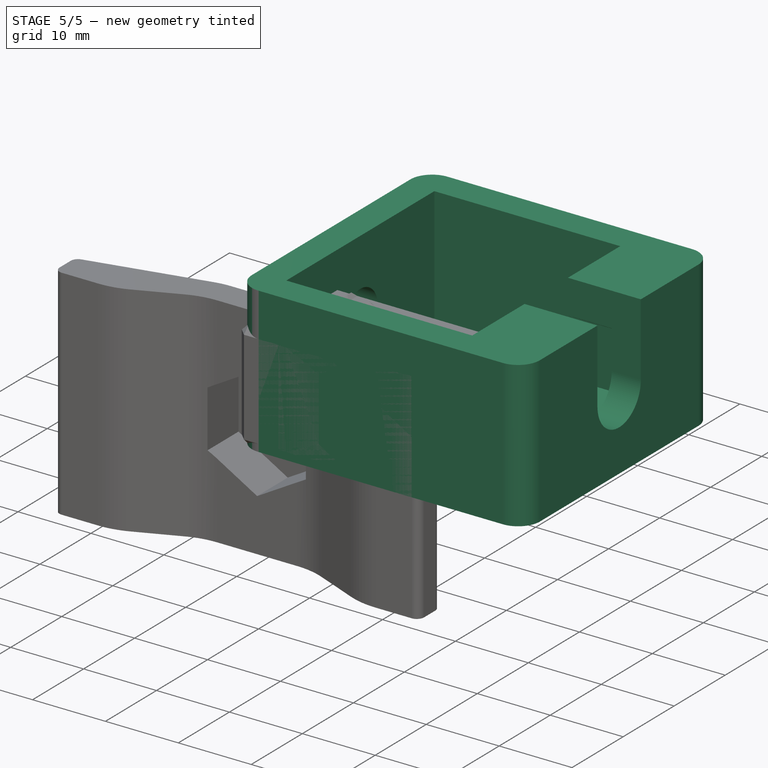
[diagram: stage 5 of 5 — iso view after this stage's code; geometry added in this stage tinted green]
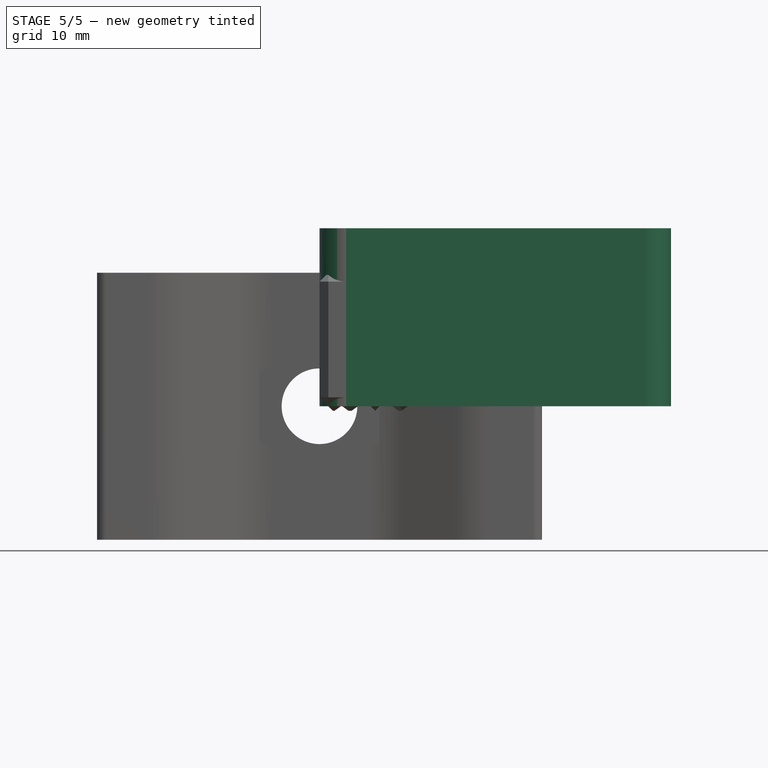
[diagram: stage 5 of 5 — front view after this stage's code; geometry added in this stage tinted green]
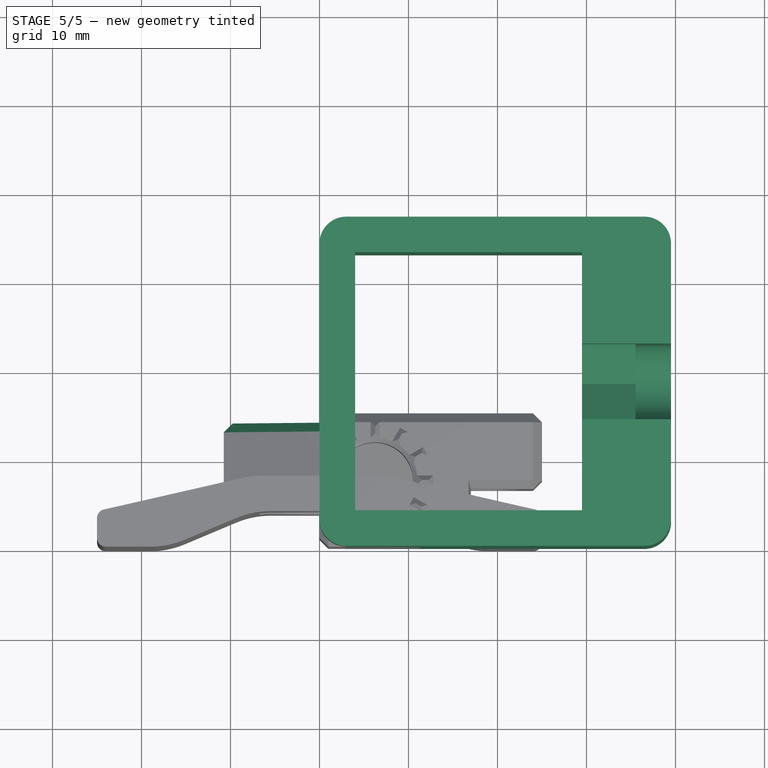
[diagram: stage 5 of 5 — top view after this stage's code; geometry added in this stage tinted green]
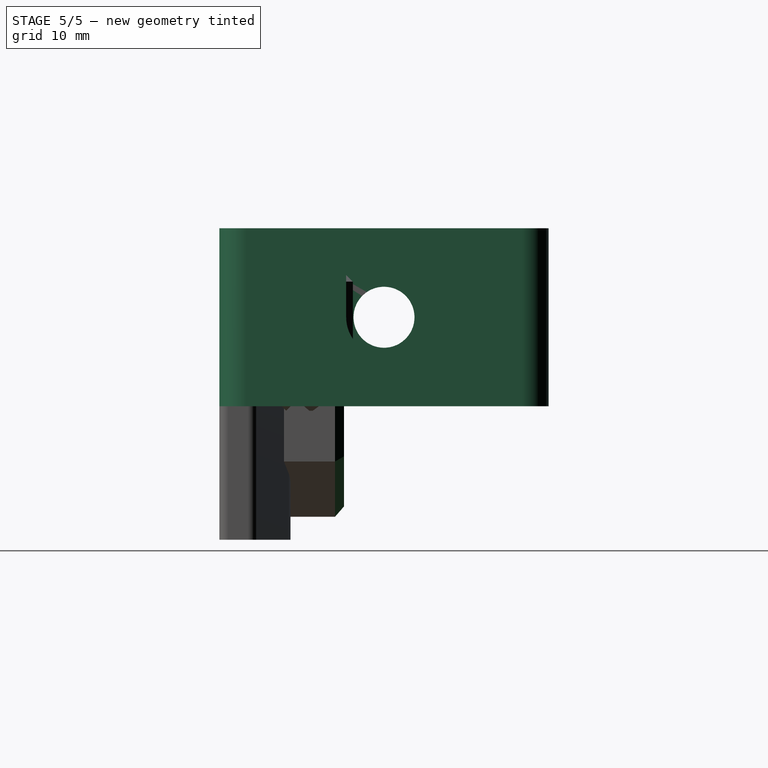
[diagram: stage 5 of 5 — right view after this stage's code; geometry added in this stage tinted green]
FEATURE [Sketcher::SketchObject] Sketch004
  FullyConstrained = true
  MapMode = 5
  Support = -> [XY_Plane002]
  expr: Constraints[66] = 6 + 4
  sketch-geometry (31):
    g0: LineSegment StartX=0 StartY=0 StartZ=0 EndX=39.5 EndY=0 EndZ=0
    g1: LineSegment StartX=39.5 StartY=0 StartZ=0 EndX=39.5 EndY=37 EndZ=0
    g2: LineSegment StartX=39.5 StartY=37 StartZ=0 EndX=0 EndY=37 EndZ=0
    g3: LineSegment StartX=0 StartY=37 StartZ=0 EndX=0 EndY=0 EndZ=0
    g4: LineSegment StartX=4 StartY=33 StartZ=0 EndX=29.5 EndY=33 EndZ=0
    g5: LineSegment StartX=29.5 StartY=33 StartZ=0 EndX=29.5 EndY=4 EndZ=0
    g6: LineSegment StartX=29.5 StartY=4 StartZ=0 EndX=4 EndY=4 EndZ=0
    g7: LineSegment StartX=4 StartY=4 StartZ=0 EndX=4 EndY=33 EndZ=0
    g8: LineSegment StartX=29.5 StartY=33 StartZ=0 EndX=29.5 EndY=37 EndZ=0
    g9: LineSegment StartX=29.5 StartY=33 StartZ=0 EndX=39.5 EndY=33 EndZ=0
    g10: LineSegment StartX=4 StartY=4 StartZ=0 EndX=4 EndY=0 EndZ=0
    g11: LineSegment StartX=4 StartY=4 StartZ=0 EndX=0 EndY=4 EndZ=0
    g12: LineSegment StartX=0 StartY=21.675 StartZ=0 EndX=12 EndY=21.675 EndZ=0
    g13: LineSegment StartX=12 StartY=21.675 StartZ=0 EndX=12 EndY=15.325 EndZ=0
    g14: LineSegment StartX=12 StartY=15.325 StartZ=0 EndX=0 EndY=15.325 EndZ=0
    g15: LineSegment StartX=0 StartY=15.325 StartZ=0 EndX=0 EndY=21.675 EndZ=0
    g16: LineSegment StartX=0 StartY=37 StartZ=0 EndX=0 EndY=21.675 EndZ=0
    g17: LineSegment StartX=0 StartY=0 StartZ=0 EndX=0 EndY=15.325 EndZ=0
    g18: LineSegment StartX=12 StartY=21.675 StartZ=0 EndX=12 EndY=31 EndZ=0
    g19: LineSegment StartX=12 StartY=15.325 StartZ=0 EndX=12 EndY=6 EndZ=0
    g20: LineSegment StartX=12 StartY=31 StartZ=0 EndX=19 EndY=31 EndZ=0
    g21: LineSegment StartX=19 StartY=31 StartZ=0 EndX=19 EndY=6 EndZ=0
    g22: LineSegment StartX=19 StartY=6 StartZ=0 EndX=12 EndY=6 EndZ=0
    g23: LineSegment StartX=12 StartY=31 StartZ=0 EndX=12 EndY=33 EndZ=0
    g24: LineSegment StartX=29.5 StartY=25.6 StartZ=0 EndX=23 EndY=25.6 EndZ=0
    g25: LineSegment StartX=23 StartY=25.6 StartZ=0 EndX=23 EndY=11.4 EndZ=0
    g26: LineSegment StartX=23 StartY=11.4 StartZ=0 EndX=29.5 EndY=11.4 EndZ=0
    g27: LineSegment StartX=29.5 StartY=11.4 StartZ=0 EndX=29.5 EndY=25.6 EndZ=0
    g28: LineSegment StartX=29.5 StartY=33 StartZ=0 EndX=29.5 EndY=25.6 EndZ=0
    g29: LineSegment StartX=29.5 StartY=33 StartZ=0 EndX=29.5 EndY=25.6 EndZ=0
    g30: LineSegment StartX=29.5 StartY=4 StartZ=0 EndX=29.5 EndY=11.4 EndZ=0
  constraints (86):
    c: Coincident(g0,g1)
    c: Coincident(g1,g2)
    c: Coincident(g2,g3)
    c: Coincident(g3,g0)
    c: Horizontal(g0)
    c: Horizontal(g2)
    c: Vertical(g1)
    c: Vertical(g3)
    c: Coincident(g0,g-1)
    c: Coincident(g4,g5)
    c: Coincident(g5,g6)
    c: Coincident(g6,g7)
    c: Coincident(g7,g4)
    c: Horizontal(g4)
    c: Horizontal(g6)
    c: Vertical(g5)
    c: Vertical(g7)
    c: Coincident(g8,g4)
    c: PointOnObject(g8,g2)
    c: Coincident(g9,g4)
    c: PointOnObject(g9,g1)
    c: Horizontal(g9)
    c: Coincident(g10,g6)
    c: PointOnObject(g10,g0)
    c: Vertical(g10)
    c: Coincident(g11,g6)
    c: PointOnObject(g11,g3)
    c: Horizontal(g11)
    c: Equal(g11,g10)
    c: Vertical(g8)
    c: DistanceY(g8,g8) = 4
    c: Equal(g10,g8)
    c: Coincident(g12,g13)
    c: Coincident(g13,g14)
    c: Coincident(g14,g15)
    c: Coincident(g15,g12)
    c: Horizontal(g12)
    c: Horizontal(g14)
    c: Vertical(g13)
    c: Vertical(g15)
    c: PointOnObject(g12,g3)
    c: DistanceX(g14,g14) = 12
    c: DistanceY(g13,g13) = 6.35
    c: Coincident(g16,g2)
    c: Coincident(g17,g0)
    c: Equal(g17,g16)
    c: Coincident(g16,g12)
    c: Coincident(g17,g14)
    c: Coincident(g18,g12)
    c: Vertical(g18)
    c: Coincident(g19,g13)
    c: Vertical(g19)
    c: Equal(g19,g18)
    c: DistanceY(g19,g18) = 25
    c: Coincident(g18,g20)
    c: Horizontal(g20)
    c: Coincident(g20,g21)
    c: Vertical(g21)
    c: Coincident(g21,g22)
    c: Coincident(g22,g19)
    c: Horizontal(g22)
    c: DistanceX(g22,g22) = 7
    c: Coincident(g23,g18)
    c: PointOnObject(g23,g4)
    c: Vertical(g23)
    c: DistanceY(g23,g23) = 2
    c: DistanceX(g9,g9) = 10
    c: Coincident(g24,g25)
    c: Coincident(g25,g26)
    c: Coincident(g26,g27)
    c: Coincident(g27,g24)
    c: Horizontal(g24)
    c: Horizontal(g26)
    c: Vertical(g25)
    c: Vertical(g27)
    c: PointOnObject(g24,g5)
    c: DistanceX(g26,g26) = 6.5
    c: DistanceY(g25,g25) = 14.2
    c: Coincident(g28,g4)
    c: Coincident(g29,g4)
    c: Coincident(g30,g5)
    c: Equal(g30,g29)
    c: Coincident(g29,g24)
    c: Coincident(g30,g26)
    c: Coincident(g28,g24)
    c: DistanceX(g20,g24) = 4
FEATURE [PartDesign::Pad] Pad002
  Direction = (0,0,1)
  Length = 20
  Length2 = 10
  Profile = -> Sketch004
  ReferenceAxis = -> Sketch004 [N_Axis]
  Type = 0
FEATURE [Sketcher::SketchObject] Sketch005
  ExternalGeometry = -> [Pad002]
  FullyConstrained = true
  MapMode = 5
  Placement = pos=(0,0,0) rot=(0.57735,-0.57735,-0.57735;2.0944rad)
  Support = -> [Pad002]
  sketch-geometry (3):
    g0: LineSegment StartX=-37 StartY=20 StartZ=0 EndX=0 EndY=0 EndZ=0
    g1: LineSegment StartX=0 StartY=20 StartZ=0 EndX=-37 EndY=0 EndZ=0
    g2: Circle CenterX=-18.5 CenterY=10 CenterZ=0 NormalX=0 NormalY=0 NormalZ=1 AngleXU=0 Radius=2.5
  constraints (7):
    c: Coincident(g0,g-3)
    c: Coincident(g0,g-4)
    c: Coincident(g1,g-3)
    c: Coincident(g1,g-4)
    c: PointOnObject(g2,g0)
    c: PointOnObject(g2,g1)
    c: Diameter(g2) = 5
FEATURE [PartDesign::Hole] Hole003
  BaseFeature = -> Pad002
  CustomThreadClearance = 0
  Depth = 5
  DepthType = 0
  Diameter = 6.85
  DrillForDepth = false
  DrillPoint = 1
  DrillPointAngle = 118
  HoleCutCountersinkAngle = 90
  HoleCutCustomValues = false
  HoleCutDepth = 0
  HoleCutDiameter = 0
  HoleCutType = 0
  ModelThread = false
  Profile = -> Sketch005
  Tapered = false
  TaperedAngle = 90
  ThreadClass = 0
  ThreadDepth = 5
  ThreadDepthType = 0
  ThreadDirection = 0
  ThreadFit = 0
  ThreadSize = 0
  ThreadType = 0
  Threaded = false
  UseCustomThreadClearance = false
FEATURE [Sketcher::SketchObject] Sketch006
  ExternalGeometry = -> [Hole003]
  FullyConstrained = true
  MapMode = 5
  Placement = pos=(39.5,0,0) rot=(0.57735,0.57735,0.57735;2.0944rad)
  Support = -> [Hole003]
  sketch-geometry (3):
    g0: LineSegment StartX=0 StartY=20 StartZ=0 EndX=37 EndY=0 EndZ=0
    g1: LineSegment StartX=37 StartY=20 StartZ=0 EndX=0 EndY=0 EndZ=0
    g2: Circle CenterX=18.5 CenterY=10 CenterZ=0 NormalX=0 NormalY=0 NormalZ=1 AngleXU=0 Radius=2.5
  constraints (7):
    c: Coincident(g0,g-3)
    c: Coincident(g0,g-4)
    c: Coincident(g1,g-3)
    c: Coincident(g1,g-4)
    c: PointOnObject(g2,g0)
    c: PointOnObject(g2,g1)
    c: Diameter(g2) = 5
FEATURE [PartDesign::Hole] Hole004
  BaseFeature = -> Hole003
  CustomThreadClearance = 0
  Depth = 15
  DepthType = 0
  Diameter = 8.5
  DrillForDepth = false
  DrillPoint = 1
  DrillPointAngle = 118
  HoleCutCountersinkAngle = 90
  HoleCutCustomValues = false
  HoleCutDepth = 0
  HoleCutDiameter = 6.1
  HoleCutType = 0
  ModelThread = false
  Profile = -> Sketch006
  Tapered = false
  TaperedAngle = 90
  ThreadClass = 0
  ThreadDepth = 15
  ThreadDepthType = 0
  ThreadDirection = 0
  ThreadFit = 0
  ThreadSize = 0
  ThreadType = 0
  Threaded = false
  UseCustomThreadClearance = false
FEATURE [Sketcher::SketchObject] Sketch007
  ExternalGeometry = -> [Hole004]
  FullyConstrained = true
  MapMode = 5
  Placement = pos=(29.5,0,0) rot=(0.57735,-0.57735,-0.57735;2.0944rad)
  Support = -> [Hole004]
  sketch-geometry (7):
    g0: LineSegment StartX=-11.75 StartY=13.8971 StartZ=0 EndX=-18.5 EndY=17.7942 EndZ=0
    g1: LineSegment StartX=-18.5 StartY=17.7942 StartZ=0 EndX=-25.25 EndY=13.8971 EndZ=0
    g2: LineSegment StartX=-25.25 StartY=13.8971 StartZ=0 EndX=-25.25 EndY=6.10289 EndZ=0
    g3: LineSegment StartX=-25.25 StartY=6.10289 StartZ=0 EndX=-18.5 EndY=2.20577 EndZ=0
    g4: LineSegment StartX=-18.5 StartY=2.20577 StartZ=0 EndX=-11.75 EndY=6.10289 EndZ=0
    g5: LineSegment StartX=-11.75 StartY=6.10289 StartZ=0 EndX=-11.75 EndY=13.8971 EndZ=0
    g6: Circle CenterX=-18.5 CenterY=10 CenterZ=0 NormalX=0 NormalY=0 NormalZ=1 AngleXU=0 Radius=7.79423
  constraints (16):
    c: Coincident(g0,g1)
    c: Coincident(g1,g2)
    c: Coincident(g2,g3)
    c: Coincident(g3,g4)
    c: Coincident(g4,g5)
    c: Coincident(g5,g0)
    c: Equal(g0, g1-g5) x5
    c: PointOnObject(g0,g6)
    c: PointOnObject(g1,g6)
    c: PointOnObject(g2,g6)
    c: PointOnObject(g3,g6)
    c: PointOnObject(g4,g6)
    c: PointOnObject(g5,g6)
    c: Coincident(g6,g-3)
    c: Vertical(g5)
    c: DistanceX(g2,g4) = 13.5
FEATURE [PartDesign::Pocket] Pocket
  BaseFeature = -> Hole004
  Direction = (1,0,0)
  Length = 6
  Length2 = 5
  Profile = -> Sketch007
  ReferenceAxis = -> Sketch007 [N_Axis]
  Type = 0
FEATURE [Sketcher::SketchObject] Sketch008
  ExternalGeometry = -> [Pocket]
  FullyConstrained = true
  MapMode = 5
  Placement = pos=(39.5,0,0) rot=(0.57735,0.57735,0.57735;2.0944rad)
  Support = -> [Pocket]
  sketch-geometry (4):
    g0: LineSegment StartX=14.25 StartY=20 StartZ=0 EndX=22.75 EndY=20 EndZ=0
    g1: LineSegment StartX=22.75 StartY=20 StartZ=0 EndX=22.75 EndY=10 EndZ=0
    g2: LineSegment StartX=22.75 StartY=10 StartZ=0 EndX=14.25 EndY=10 EndZ=0
    g3: LineSegment StartX=14.25 StartY=10 StartZ=0 EndX=14.25 EndY=20 EndZ=0
  constraints (12):
    c: Coincident(g0,g1)
    c: Coincident(g1,g2)
    c: Coincident(g2,g3)
    c: Coincident(g3,g0)
    c: Horizontal(g0)
    c: Horizontal(g2)
    c: Vertical(g1)
    c: Vertical(g3)
    c: PointOnObject(g0,g-3)
    c: PointOnObject(g2,g-4)
    c: PointOnObject(g1,g-4)
    c: PointOnObject(g-4,g2)
FEATURE [PartDesign::Pocket] Pocket001
  BaseFeature = -> Pocket
  Direction = (-1,0,0)
  Length = 15
  Length2 = 5
  Profile = -> Sketch008
  ReferenceAxis = -> Sketch008 [N_Axis]
  Type = 0
FEATURE [PartDesign::Fillet] Fillet003
  Base = -> Pocket001 [Edge1,Edge2,Edge5,Edge10]
  BaseFeature = -> Pocket001
  Radius = 3
  SupportTransform = false
  UseAllEdges = false
FEATURE [PartDesign::Chamfer] Chamfer003
  Angle = 45
  Base = -> Pocket002 [Face42]
  BaseFeature = -> Pocket002
  ChamferType = 0
  FlipDirection = false
  Size = 1
  Size2 = 1
  SupportTransform = false
  UseAllEdges = false
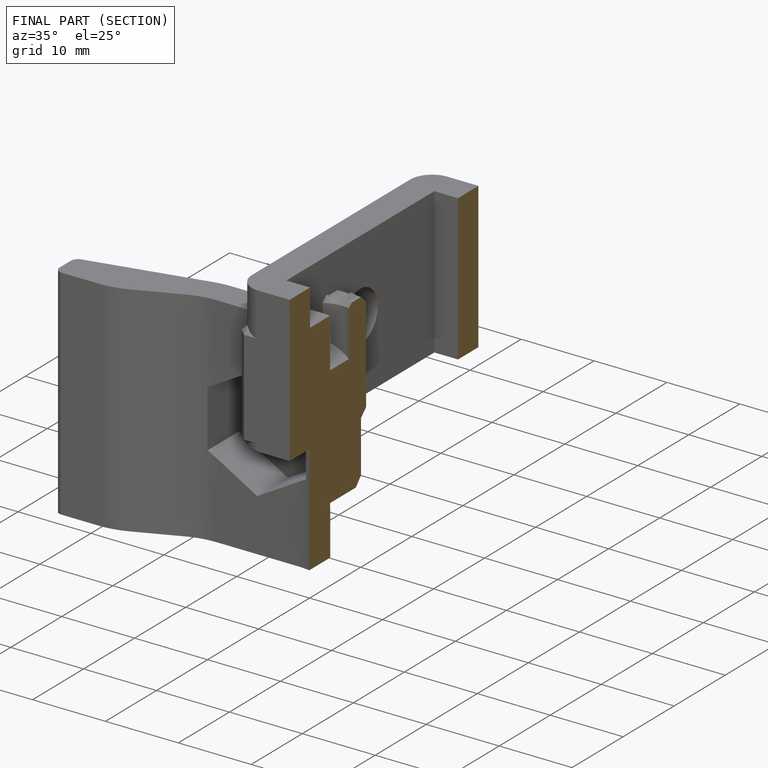
[diagram: finished part — half-section view (interior)]
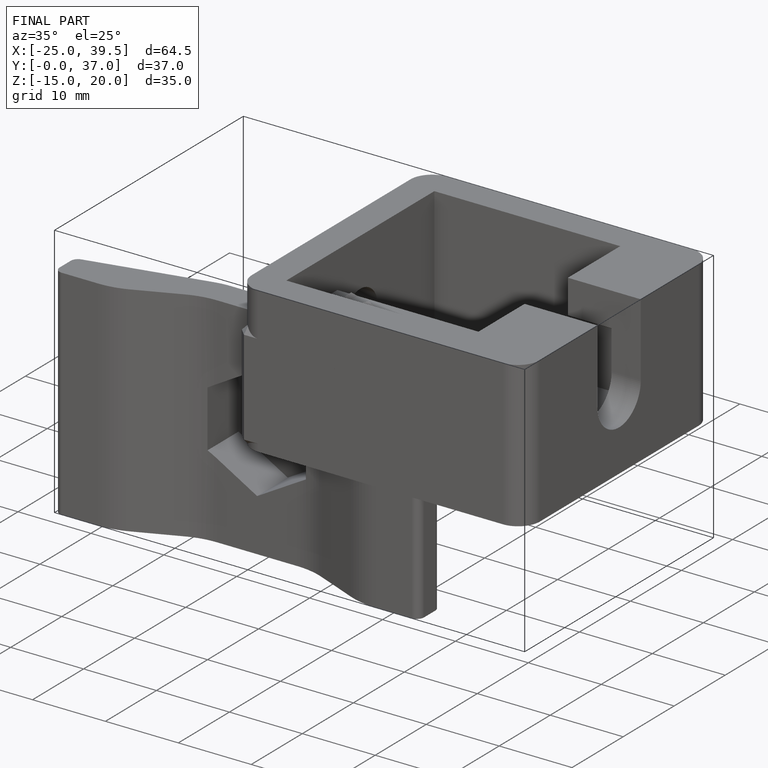
[diagram: finished part — iso view with bounding-box wireframe]
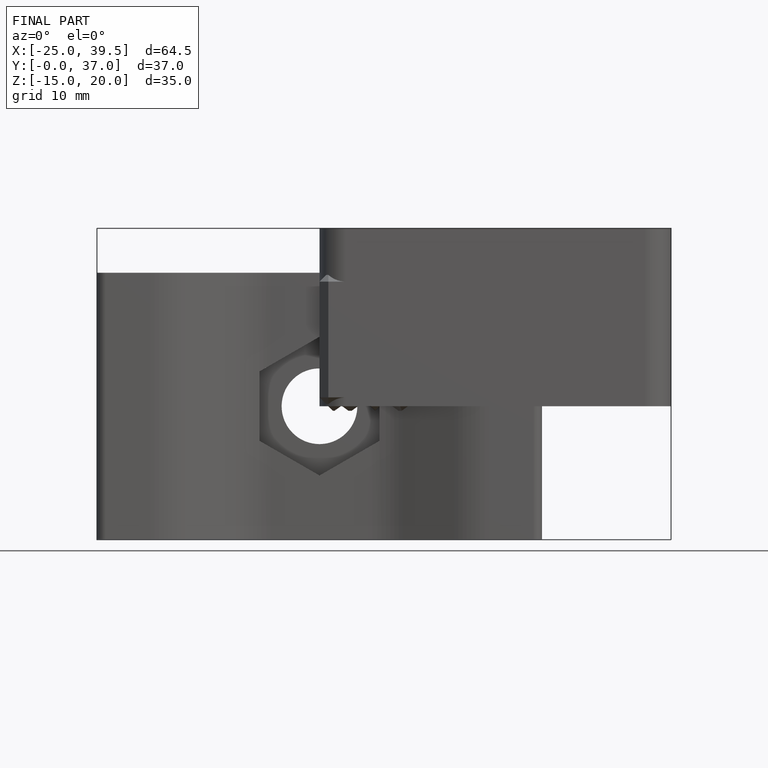
[diagram: finished part — front view with bounding-box wireframe]
